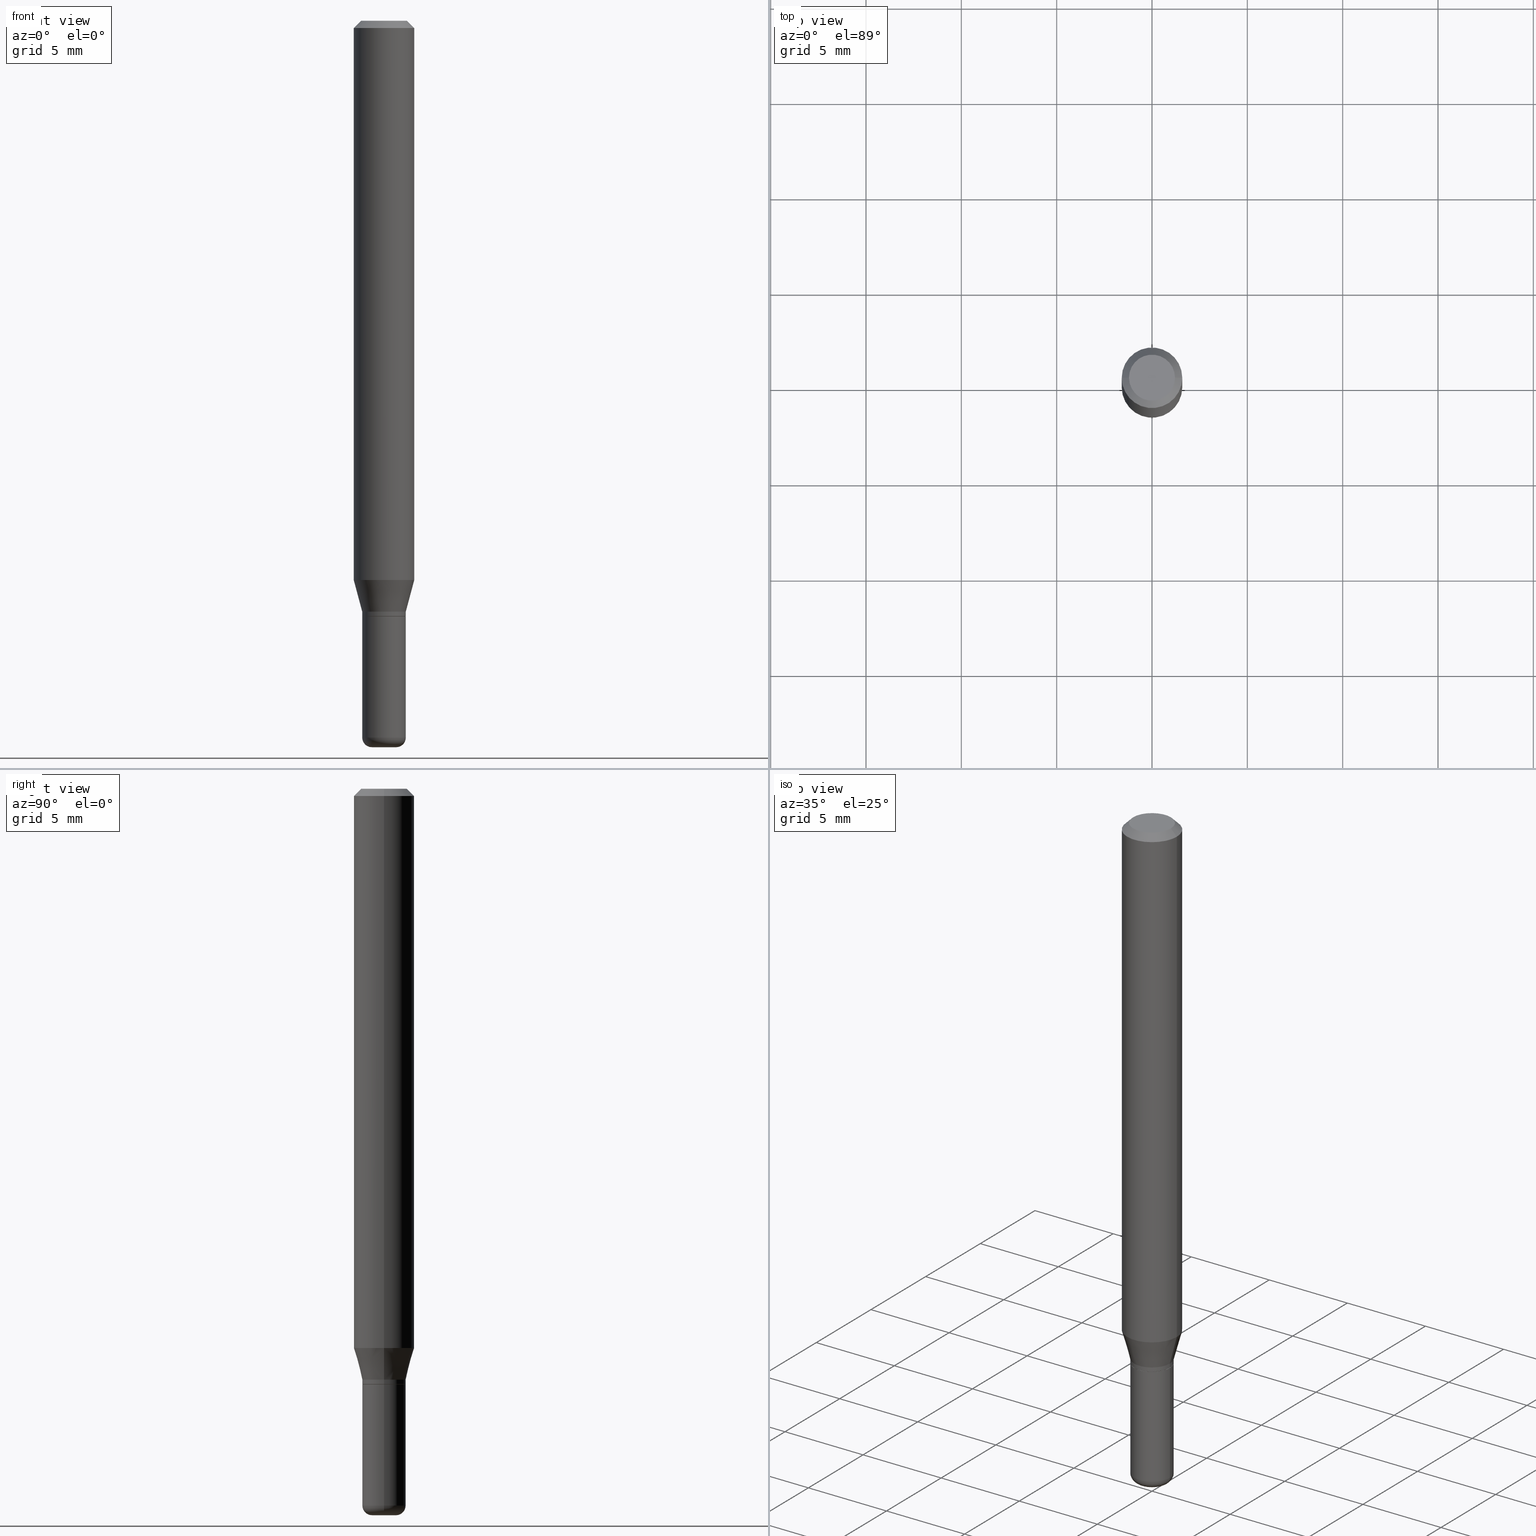
[diagram: canonical four-view strip — front | top / right | iso, engineering-drawing reading convention]
A machine part, canonical four-view strip (front | top / right | iso — engineering-drawing reading convention). The complete STEP part file that produces these views, byte-faithful:
ISO-10303-21;
HEADER;
FILE_DESCRIPTION (( 'STEP AP203' ),
    '1' );
FILE_NAME ('08582.STEP',
    '2024-02-29T19:52:15',
    ( '' ),
    ( '' ),
    'SwSTEP 2.0',
    'SolidWorks 2023',
    '' );
FILE_SCHEMA (( 'CONFIG_CONTROL_DESIGN' ));
ENDSEC;

DATA;
#1 = EDGE_CURVE ( 'NONE', #264, #388, #477, .T. ) ;
#2 = DIRECTION ( 'NONE',  ( 2.445468806185136597E-29, -3.491481338843145583E-15, -1.000000000000000000 ) ) ;
#3 = EDGE_CURVE ( 'NONE', #237, #518, #12, .T. ) ;
#4 = ORIENTED_EDGE ( 'NONE', *, *, #233, .T. ) ;
#5 = CIRCLE ( 'NONE', #69, 0.04499999999999999833 ) ;
#6 = FACE_OUTER_BOUND ( 'NONE', #273, .T. ) ;
#7 = ORIENTED_EDGE ( 'NONE', *, *, #162, .F. ) ;
#8 = VERTEX_POINT ( 'NONE', #484 ) ;
#9 = PERSON_AND_ORGANIZATION ( #109, #311 ) ;
#10 = EDGE_LOOP ( 'NONE', ( #348, #248 ) ) ;
#11 = CIRCLE ( 'NONE', #75, 0.02000000000000003511 ) ;
#12 = CIRCLE ( 'NONE', #337, 0.06250000000000000000 ) ;
#13 = AXIS2_PLACEMENT_3D ( 'NONE', #507, #106, #292 ) ;
#14 = CARTESIAN_POINT ( 'NONE',  ( -0.06250000000000000000, -1.597884641570968368E-15, -0.01499999999999970281 ) ) ;
#15 = ORIENTED_EDGE ( 'NONE', *, *, #1, .F. ) ;
#16 =( LENGTH_UNIT ( ) NAMED_UNIT ( * ) SI_UNIT ( $, .METRE. ) );
#17 = CYLINDRICAL_SURFACE ( 'NONE', #296, 0.04500000000000001221 ) ;
#18 =( NAMED_UNIT ( * ) SI_UNIT ( $, .STERADIAN. ) SOLID_ANGLE_UNIT ( ) );
#19 = EDGE_CURVE ( 'NONE', #271, #317, #172, .T. ) ;
#20 = ORIENTED_EDGE ( 'NONE', *, *, #427, .F. ) ;
#21 = LOCAL_TIME ( 14, 52, 15.00000000000000000, #458 ) ;
#22 = PERSON_AND_ORGANIZATION ( #109, #311 ) ;
#23 = DIRECTION ( 'NONE',  ( 2.438088387897960049E-29, -3.491481338843145188E-15, -1.000000000000000000 ) ) ;
#24 = DIRECTION ( 'NONE',  ( 1.000000000000000000, -6.982962677686269077E-15, 0.000000000000000000 ) ) ;
#25 = ADVANCED_FACE ( 'NONE', ( #125 ), #17, .T. ) ;
#26 = EDGE_CURVE ( 'NONE', #170, #266, #58, .T. ) ;
#27 = CALENDAR_DATE ( 2024, 29, 2 ) ;
#28 = PLANE ( 'NONE',  #423 ) ;
#29 = AXIS2_PLACEMENT_3D ( 'NONE', #406, #321, #199 ) ;
#30 = CIRCLE ( 'NONE', #277, 0.04499999999999999833 ) ;
#31 = CIRCLE ( 'NONE', #395, 0.04750000000000000749 ) ;
#32 = DIRECTION ( 'NONE',  ( -2.445468806185136877E-29, 3.491481338843145188E-15, 1.000000000000000000 ) ) ;
#33 = DATE_AND_TIME ( #27, #244 ) ;
#34 = CARTESIAN_POINT ( 'NONE',  ( 3.316907271900976589E-16, 0.04750000000000000749, -2.925296391183627249E-17 ) ) ;
#35 = EDGE_CURVE ( 'NONE', #271, #266, #421, .T. ) ;
#36 = CARTESIAN_POINT ( 'NONE',  ( 3.619293833154002365E-29, -5.167392381487854879E-15, -1.479999999999999982 ) ) ;
#37 = AXIS2_PLACEMENT_3D ( 'NONE', #73, #2, #272 ) ;
#38 = DIRECTION ( 'NONE',  ( -2.445468806185136597E-29, 3.491481338843145583E-15, 1.000000000000000000 ) ) ;
#39 = ORIENTED_EDGE ( 'NONE', *, *, #453, .T. ) ;
#40 = AXIS2_PLACEMENT_3D ( 'NONE', #379, #414, #297 ) ;
#41 = ORIENTED_EDGE ( 'NONE', *, *, #180, .T. ) ;
#42 = CC_DESIGN_PERSON_AND_ORGANIZATION_ASSIGNMENT ( #463, #64, ( #203 ) ) ;
#43 = DIRECTION ( 'NONE',  ( -2.445468806185136877E-29, 3.491481338843145188E-15, 1.000000000000000000 ) ) ;
#44 = EDGE_LOOP ( 'NONE', ( #305, #115, #118, #405 ) ) ;
#45 = CARTESIAN_POINT ( 'NONE',  ( -0.04499999999999999833, -3.939863002296592945E-15, -1.220000000000000195 ) ) ;
#46 = ORIENTED_EDGE ( 'NONE', *, *, #408, .F. ) ;
#47 = AXIS2_PLACEMENT_3D ( 'NONE', #135, #286, #452 ) ;
#48 = CONICAL_SURFACE ( 'NONE', #13, 0.04450000000000001177, 0.7853981633972775267 ) ;
#49 = EDGE_CURVE ( 'NONE', #317, #130, #513, .T. ) ;
#50 = CC_DESIGN_PERSON_AND_ORGANIZATION_ASSIGNMENT ( #9, #144, ( #198 ) ) ;
#51 = VERTEX_POINT ( 'NONE', #290 ) ;
#52 = DIRECTION ( 'NONE',  ( -2.445468806185136597E-29, 3.491481338843145583E-15, 1.000000000000000000 ) ) ;
#53 = ORIENTED_EDGE ( 'NONE', *, *, #3, .F. ) ;
#54 = DIRECTION ( 'NONE',  ( 1.000000000000000000, -6.982962677686254878E-15, 0.000000000000000000 ) ) ;
#55 = EDGE_LOOP ( 'NONE', ( #368, #94, #242, #480 ) ) ;
#56 = CC_DESIGN_SECURITY_CLASSIFICATION ( #335, ( #203 ) ) ;
#57 = DIRECTION ( 'NONE',  ( 1.000000000000000000, -6.982962677686265922E-15, 4.876176775795935793E-29 ) ) ;
#58 = LINE ( 'NONE', #365, #403 ) ;
#59 = CARTESIAN_POINT ( 'NONE',  ( 0.02499999999999999792, -5.341966448430011546E-15, -1.479999999999999982 ) ) ;
#60 = ORIENTED_EDGE ( 'NONE', *, *, #217, .T. ) ;
#61 = EDGE_LOOP ( 'NONE', ( #250, #232, #197, #74 ) ) ;
#62 = AXIS2_PLACEMENT_3D ( 'NONE', #190, #349, #114 ) ;
#63 = CIRCLE ( 'NONE', #126, 0.06250000000000000000 ) ;
#64 = PERSON_AND_ORGANIZATION_ROLE ( 'creator' ) ;
#65 = DIRECTION ( 'NONE',  ( -2.445468806185136597E-29, 3.491481338843145583E-15, 1.000000000000000000 ) ) ;
#66 = CARTESIAN_POINT ( 'NONE',  ( 0.06250000000000000000, -4.364351673553916694E-16, 3.047610484872459871E-30 ) ) ;
#67 = APPROVAL_ROLE ( '' ) ;
#68 = DIRECTION ( 'NONE',  ( 0.7071067811864267805, -2.468850131080992517E-15, 0.7071067811866682540 ) ) ;
#69 = AXIS2_PLACEMENT_3D ( 'NONE', #251, #409, #201 ) ;
#70 = DIRECTION ( 'NONE',  ( -2.438088387897960049E-29, 3.491481338843145188E-15, 1.000000000000000000 ) ) ;
#71 = EDGE_CURVE ( 'NONE', #470, #89, #30, .T. ) ;
#72 = DIRECTION ( 'NONE',  ( -2.445468806185136597E-29, 3.491481338843145583E-15, 1.000000000000000000 ) ) ;
#73 = CARTESIAN_POINT ( 'NONE',  ( 3.668203209277632395E-31, -5.237222008264614861E-17, -0.01499999999999970281 ) ) ;
#74 = ORIENTED_EDGE ( 'NONE', *, *, #481, .F. ) ;
#75 = AXIS2_PLACEMENT_3D ( 'NONE', #59, #492, #488 ) ;
#76 = DIRECTION ( 'NONE',  ( -0.2588190451025206285, 5.211531920934544731E-15, 0.9659258262890682012 ) ) ;
#77 = ORIENTED_EDGE ( 'NONE', *, *, #49, .F. ) ;
#78 = AXIS2_PLACEMENT_3D ( 'NONE', #374, #65, #373 ) ;
#79 = APPROVAL ( #291, 'UNSPECIFIED' ) ;
#80 = CARTESIAN_POINT ( 'NONE',  ( 0.06250000000000000000, -4.811533449433669144E-16, -0.01499999999999970281 ) ) ;
#81 = ORIENTED_EDGE ( 'NONE', *, *, #71, .T. ) ;
#82 = FACE_OUTER_BOUND ( 'NONE', #193, .T. ) ;
#83 = ORIENTED_EDGE ( 'NONE', *, *, #333, .F. ) ;
#84 = CARTESIAN_POINT ( 'NONE',  ( 0.04500000000000003303, -5.481625701983737354E-15, -1.479999999999999982 ) ) ;
#85 = CIRCLE ( 'NONE', #345, 0.04500000000000001221 ) ;
#86 = EDGE_LOOP ( 'NONE', ( #120, #152, #358, #282 ) ) ;
#87 = AXIS2_PLACEMENT_3D ( 'NONE', #34, #23, #185 ) ;
#88 = DIRECTION ( 'NONE',  ( -2.445468806185136597E-29, 3.491481338843145583E-15, 1.000000000000000000 ) ) ;
#89 = VERTEX_POINT ( 'NONE', #97 ) ;
#90 =( NAMED_UNIT ( * ) PLANE_ANGLE_UNIT ( ) SI_UNIT ( $, .RADIAN. ) );
#91 = ORIENTED_EDGE ( 'NONE', *, *, #19, .F. ) ;
#92 = FACE_OUTER_BOUND ( 'NONE', #86, .T. ) ;
#93 = EDGE_CURVE ( 'NONE', #89, #470, #5, .T. ) ;
#94 = ORIENTED_EDGE ( 'NONE', *, *, #238, .T. ) ;
#95 = VECTOR ( 'NONE', #478, 39.37007874015748143 ) ;
#96 = DIRECTION ( 'NONE',  ( -2.445468806185136597E-29, 3.491481338843145583E-15, 1.000000000000000000 ) ) ;
#97 = CARTESIAN_POINT ( 'NONE',  ( -0.04499999999999999833, -4.411212983040417053E-15, -1.230000000000000204 ) ) ;
#98 = PERSON_AND_ORGANIZATION_ROLE ( 'creator' ) ;
#99 = ADVANCED_FACE ( 'NONE', ( #128 ), #447, .T. ) ;
#100 = DIRECTION ( 'NONE',  ( 1.000000000000000000, -6.982962677686276177E-15, 0.000000000000000000 ) ) ;
#101 = VECTOR ( 'NONE', #194, 39.37007874015748143 ) ;
#102 = SECURITY_CLASSIFICATION_LEVEL ( 'unclassified' ) ;
#103 = CARTESIAN_POINT ( 'NONE',  ( -0.04500000000000000527, 3.197442310920451211E-16, -2.213520790614707910E-30 ) ) ;
#104 = LINE ( 'NONE', #103, #124 ) ;
#105 = PERSON_AND_ORGANIZATION ( #109, #311 ) ;
#106 = DIRECTION ( 'NONE',  ( -2.445468806185136597E-29, 3.491481338843145583E-15, 1.000000000000000000 ) ) ;
#107 = ADVANCED_FACE ( 'NONE', ( #459 ), #48, .T. ) ;
#108 = ADVANCED_FACE ( 'NONE', ( #411 ), #486, .T. ) ;
#109 = PERSON ( 'UNSPECIFIED', 'UNSPECIFIED', 'UNSPECIFIED', ('UNSPECIFIED'), ('UNSPECIFIED'), ('UNSPECIFIED') ) ;
#110 = AXIS2_PLACEMENT_3D ( 'NONE', #342, #174, #466 ) ;
#111 = CARTESIAN_POINT ( 'NONE',  ( 0.04750000000000000749, -4.035134999187568762E-16, 2.731847993664288856E-16 ) ) ;
#112 = CARTESIAN_POINT ( 'NONE',  ( 3.668203209277704895E-29, -5.237222008264718177E-15, -1.500000000000000222 ) ) ;
#113 = ORIENTED_EDGE ( 'NONE', *, *, #257, .F. ) ;
#114 = DIRECTION ( 'NONE',  ( 1.000000000000000000, -6.982962677686262766E-15, 4.883557194083111780E-29 ) ) ;
#115 = ORIENTED_EDGE ( 'NONE', *, *, #168, .T. ) ;
#116 = APPROVAL_PERSON_ORGANIZATION ( #506, #79, #67 ) ;
#117 = LINE ( 'NONE', #119, #101 ) ;
#118 = ORIENTED_EDGE ( 'NONE', *, *, #427, .T. ) ;
#119 = CARTESIAN_POINT ( 'NONE',  ( -0.06250000000000000000, 3.840629472727455270E-16, -0.01499999999999970281 ) ) ;
#120 = ORIENTED_EDGE ( 'NONE', *, *, #160, .F. ) ;
#121 = DIRECTION ( 'NONE',  ( 1.000000000000000000, -6.982962677686266711E-15, 4.876176775795935793E-29 ) ) ;
#122 = ORIENTED_EDGE ( 'NONE', *, *, #160, .T. ) ;
#123 = CARTESIAN_POINT ( 'NONE',  ( 0.000000000000000000, 0.000000000000000000, 0.000000000000000000 ) ) ;
#124 = VECTOR ( 'NONE', #148, 39.37007874015748143 ) ;
#125 = FACE_OUTER_BOUND ( 'NONE', #314, .T. ) ;
#126 = AXIS2_PLACEMENT_3D ( 'NONE', #243, #249, #164 ) ;
#127 = PLANE ( 'NONE',  #511 ) ;
#128 = FACE_OUTER_BOUND ( 'NONE', #55, .T. ) ;
#129 = DIRECTION ( 'NONE',  ( 0.000000000000000000, 0.000000000000000000, 1.000000000000000000 ) ) ;
#130 = VERTEX_POINT ( 'NONE', #177 ) ;
#131 = DIRECTION ( 'NONE',  ( -1.000000000000000000, 6.982962677686266711E-15, 0.000000000000000000 ) ) ;
#132 = DIRECTION ( 'NONE',  ( 1.000000000000000000, -6.982962677686266711E-15, 0.000000000000000000 ) ) ;
#133 = AXIS2_PLACEMENT_3D ( 'NONE', #246, #166, #360 ) ;
#134 = CIRCLE ( 'NONE', #303, 0.04499999999999999833 ) ;
#135 = CARTESIAN_POINT ( 'NONE',  ( 2.983471943545866670E-29, -4.259607233388637524E-15, -1.220000000000000195 ) ) ;
#136 = EDGE_CURVE ( 'NONE', #302, #271, #457, .T. ) ;
#137 = EDGE_CURVE ( 'NONE', #170, #302, #412, .T. ) ;
#138 = DIRECTION ( 'NONE',  ( 1.000000000000000000, -6.982962677686267499E-15, 4.876176775795935793E-29 ) ) ;
#139 = CALENDAR_DATE ( 2024, 29, 2 ) ;
#140 = DIRECTION ( 'NONE',  ( -2.445468806185136597E-29, 3.491481338843145583E-15, 1.000000000000000000 ) ) ;
#141 = AXIS2_PLACEMENT_3D ( 'NONE', #253, #256, #24 ) ;
#142 = APPROVAL_DATE_TIME ( #260, #202 ) ;
#143 = FACE_OUTER_BOUND ( 'NONE', #195, .T. ) ;
#144 = PERSON_AND_ORGANIZATION_ROLE ( 'design_owner' ) ;
#145 = CARTESIAN_POINT ( 'NONE',  ( 2.983471943545866670E-29, -4.259607233388637524E-15, -1.220000000000000195 ) ) ;
#146 = EDGE_CURVE ( 'NONE', #235, #237, #499, .T. ) ;
#147 = APPROVAL_DATE_TIME ( #33, #157 ) ;
#148 = DIRECTION ( 'NONE',  ( -2.445468806185136877E-29, 3.491481338843145188E-15, 1.000000000000000000 ) ) ;
#149 = VECTOR ( 'NONE', #308, 39.37007874015748854 ) ;
#150 = DIRECTION ( 'NONE',  ( 1.000000000000000000, -6.982962677686262766E-15, 4.883557194083111780E-29 ) ) ;
#151 = CARTESIAN_POINT ( 'NONE',  ( 3.007926631607718216E-29, -4.294522046777069173E-15, -1.230000000000000204 ) ) ;
#152 = ORIENTED_EDGE ( 'NONE', *, *, #481, .T. ) ;
#153 = DIRECTION ( 'NONE',  ( -2.445468806185136597E-29, 3.491481338843145583E-15, 1.000000000000000000 ) ) ;
#154 = ORIENTED_EDGE ( 'NONE', *, *, #378, .T. ) ;
#155 = DIRECTION ( 'NONE',  ( -2.445468806185136597E-29, 3.491481338843145583E-15, 1.000000000000000000 ) ) ;
#156 = VECTOR ( 'NONE', #432, 39.37007874015748143 ) ;
#157 = APPROVAL ( #212, 'UNSPECIFIED' ) ;
#158 = EDGE_LOOP ( 'NONE', ( #81, #310 ) ) ;
#159 = CARTESIAN_POINT ( 'NONE',  ( 0.04499999999999999833, -4.573840553884519999E-15, -1.220000000000000195 ) ) ;
#160 = EDGE_CURVE ( 'NONE', #266, #130, #104, .T. ) ;
#161 = ORIENTED_EDGE ( 'NONE', *, *, #136, .F. ) ;
#162 = EDGE_CURVE ( 'NONE', #401, #324, #167, .T. ) ;
#163 = ORIENTED_EDGE ( 'NONE', *, *, #288, .T. ) ;
#164 = DIRECTION ( 'NONE',  ( 1.000000000000000000, -6.982962677686262766E-15, 0.000000000000000000 ) ) ;
#165 = LOCAL_TIME ( 14, 52, 15.00000000000000000, #372 ) ;
#166 = DIRECTION ( 'NONE',  ( -2.445468806185136597E-29, 3.491481338843145583E-15, 1.000000000000000000 ) ) ;
#167 = CIRCLE ( 'NONE', #254, 0.04500000000000003303 ) ;
#168 = EDGE_CURVE ( 'NONE', #130, #317, #134, .T. ) ;
#169 = DIRECTION ( 'NONE',  ( -2.438088387897960049E-29, 3.491481338843145188E-15, 1.000000000000000000 ) ) ;
#170 = VERTEX_POINT ( 'NONE', #501 ) ;
#171 = CARTESIAN_POINT ( 'NONE',  ( 3.668203209277632395E-31, -5.237222008264614861E-17, -0.01499999999999970281 ) ) ;
#172 = LINE ( 'NONE', #496, #245 ) ;
#173 = COORDINATED_UNIVERSAL_TIME_OFFSET ( 5, 0, .BEHIND. ) ;
#174 = DIRECTION ( 'NONE',  ( 7.105427357601001859E-15, 1.000000000000000000, -3.491481338843145583E-15 ) ) ;
#175 = DIRECTION ( 'NONE',  ( -2.445468806185136877E-29, 3.491481338843145188E-15, 1.000000000000000000 ) ) ;
#176 = COORDINATED_UNIVERSAL_TIME_OFFSET ( 5, 0, .BEHIND. ) ;
#177 = CARTESIAN_POINT ( 'NONE',  ( -0.04499999999999999833, -3.763674637602973398E-15, -1.220000000000000195 ) ) ;
#178 = APPLICATION_CONTEXT ( 'configuration controlled 3d designs of mechanical parts and assemblies' ) ;
#179 = LOCAL_TIME ( 14, 52, 15.00000000000000000, #255 ) ;
#180 = EDGE_CURVE ( 'NONE', #518, #237, #361, .T. ) ;
#181 = APPLICATION_PROTOCOL_DEFINITION ( 'international standard', 'config_control_design', 1994, #178 ) ;
#182 = PRODUCT_DEFINITION ( 'UNKNOWN', '', #203, #208 ) ;
#183 = DIRECTION ( 'NONE',  ( 1.000000000000000000, -6.982962677686263555E-15, 0.000000000000000000 ) ) ;
#184 = PERSON_AND_ORGANIZATION_ROLE ( 'design_supplier' ) ;
#185 = DIRECTION ( 'NONE',  ( -1.000000000000000000, 6.982962677686265922E-15, -4.876176775795935793E-29 ) ) ;
#186 = CARTESIAN_POINT ( 'NONE',  ( -0.04500000000000001221, 3.197442310920451704E-16, -2.213520790614708260E-30 ) ) ;
#187 = ORIENTED_EDGE ( 'NONE', *, *, #137, .F. ) ;
#188 = VECTOR ( 'NONE', #43, 39.37007874015748143 ) ;
#189 = VECTOR ( 'NONE', #32, 39.37007874015748143 ) ;
#190 = CARTESIAN_POINT ( 'NONE',  ( 3.619293833154002365E-29, -5.167392381487854879E-15, -1.479999999999999982 ) ) ;
#191 = EDGE_LOOP ( 'NONE', ( #226, #206 ) ) ;
#192 = CARTESIAN_POINT ( 'NONE',  ( 0.04500000000000001221, -4.607009626603530145E-15, -1.229500000000000037 ) ) ;
#193 = EDGE_LOOP ( 'NONE', ( #516, #472, #439, #41 ) ) ;
#194 = DIRECTION ( 'NONE',  ( -0.7071067811865479058, 2.468850131082261005E-15, -0.7071067811865471286 ) ) ;
#195 = EDGE_LOOP ( 'NONE', ( #46, #187 ) ) ;
#196 = DIRECTION ( 'NONE',  ( -2.445468806185136597E-29, 3.491481338843145583E-15, 1.000000000000000000 ) ) ;
#197 = ORIENTED_EDGE ( 'NONE', *, *, #136, .T. ) ;
#198 = PRODUCT ( '08582', '08582', '', ( #357 ) ) ;
#199 = DIRECTION ( 'NONE',  ( -1.000000000000000000, 6.982962677686265922E-15, -4.876176775795935793E-29 ) ) ;
#200 = ORIENTED_EDGE ( 'NONE', *, *, #26, .T. ) ;
#201 = DIRECTION ( 'NONE',  ( 1.000000000000000000, -6.982962677686269077E-15, 0.000000000000000000 ) ) ;
#202 = APPROVAL ( #504, 'UNSPECIFIED' ) ;
#203 = PRODUCT_DEFINITION_FORMATION_WITH_SPECIFIED_SOURCE ( 'ANY', '', #198, .NOT_KNOWN. ) ;
#204 = DIRECTION ( 'NONE',  ( 1.000000000000000000, -6.982962677686267499E-15, 4.876176775795935793E-29 ) ) ;
#205 = CARTESIAN_POINT ( 'NONE',  ( 0.04499999999999999833, -4.608755367272951648E-15, -1.230000000000000204 ) ) ;
#206 = ORIENTED_EDGE ( 'NONE', *, *, #436, .F. ) ;
#207 = ORIENTED_EDGE ( 'NONE', *, *, #146, .F. ) ;
#208 = DESIGN_CONTEXT ( 'detailed design', #178, 'design' ) ;
#209 = AXIS2_PLACEMENT_3D ( 'NONE', #304, #196, #270 ) ;
#210 = ORIENTED_EDGE ( 'NONE', *, *, #3, .T. ) ;
#211 = AXIS2_PLACEMENT_3D ( 'NONE', #112, #52, #54 ) ;
#212 = APPROVAL_STATUS ( 'not_yet_approved' ) ;
#213 = CARTESIAN_POINT ( 'NONE',  ( 3.007926631607718216E-29, -4.294522046777069173E-15, -1.230000000000000204 ) ) ;
#214 = ADVANCED_FACE ( 'NONE', ( #143 ), #28, .F. ) ;
#215 = PERSON_AND_ORGANIZATION_ROLE ( 'classification_officer' ) ;
#216 = FACE_OUTER_BOUND ( 'NONE', #397, .T. ) ;
#217 = EDGE_CURVE ( 'NONE', #8, #518, #371, .T. ) ;
#218 = CARTESIAN_POINT ( 'NONE',  ( 3.007926631607718216E-29, -4.294522046777069173E-15, -1.230000000000000204 ) ) ;
#219 =( GEOMETRIC_REPRESENTATION_CONTEXT ( 3 ) GLOBAL_UNCERTAINTY_ASSIGNED_CONTEXT ( ( #456 ) ) GLOBAL_UNIT_ASSIGNED_CONTEXT ( ( #445, #90, #18 ) ) REPRESENTATION_CONTEXT ( 'NONE', 'WORKASPACE' ) );
#220 = TOROIDAL_SURFACE ( 'NONE', #467, 0.02499999999999999792, 0.02000000000000003164 ) ;
#221 = DATE_AND_TIME ( #377, #179 ) ;
#222 = CARTESIAN_POINT ( 'NONE',  ( -0.06250000000000000000, 4.440892098500626162E-16, -3.074334431409316114E-30 ) ) ;
#223 = DIRECTION ( 'NONE',  ( 1.000000000000000000, -6.982962677686269077E-15, 0.000000000000000000 ) ) ;
#224 = ADVANCED_FACE ( 'NONE', ( #216 ), #228, .T. ) ;
#225 = DIRECTION ( 'NONE',  ( -2.445468806185136597E-29, 3.491481338843145583E-15, 1.000000000000000000 ) ) ;
#226 = ORIENTED_EDGE ( 'NONE', *, *, #233, .F. ) ;
#227 = AXIS2_PLACEMENT_3D ( 'NONE', #490, #398, #451 ) ;
#228 = CONICAL_SURFACE ( 'NONE', #141, 0.04499999999999999833, 0.2617993877991493523 ) ;
#229 = DIRECTION ( 'NONE',  ( 1.000000000000000000, -6.982962677686266711E-15, 4.876176775795935793E-29 ) ) ;
#230 = ORIENTED_EDGE ( 'NONE', *, *, #35, .F. ) ;
#231 = CYLINDRICAL_SURFACE ( 'NONE', #209, 0.04500000000000000527 ) ;
#232 = ORIENTED_EDGE ( 'NONE', *, *, #137, .T. ) ;
#233 = EDGE_CURVE ( 'NONE', #435, #51, #262, .T. ) ;
#234 = CARTESIAN_POINT ( 'NONE',  ( -6.680649051745406845E-45, 9.538196290434862081E-31, 2.731847993664263218E-16 ) ) ;
#235 = VERTEX_POINT ( 'NONE', #336 ) ;
#236 = LOCAL_TIME ( 14, 52, 15.00000000000000000, #173 ) ;
#237 = VERTEX_POINT ( 'NONE', #334 ) ;
#238 = EDGE_CURVE ( 'NONE', #324, #401, #510, .T. ) ;
#239 = FACE_OUTER_BOUND ( 'NONE', #158, .T. ) ;
#240 = ADVANCED_FACE ( 'NONE', ( #464 ), #462, .F. ) ;
#241 = DIRECTION ( 'NONE',  ( -2.445468806185136597E-29, 3.491481338843145583E-15, 1.000000000000000000 ) ) ;
#242 = ORIENTED_EDGE ( 'NONE', *, *, #294, .T. ) ;
#243 = CARTESIAN_POINT ( 'NONE',  ( 2.823756201468231071E-29, -4.031575482759416467E-15, -1.154689110867544777 ) ) ;
#244 = LOCAL_TIME ( 14, 52, 15.00000000000000000, #176 ) ;
#245 = VECTOR ( 'NONE', #444, 39.37007874015748143 ) ;
#246 = CARTESIAN_POINT ( 'NONE',  ( -6.680649051745406845E-45, 9.538196290434862081E-31, 2.731847993664263218E-16 ) ) ;
#247 = CC_DESIGN_DATE_AND_TIME_ASSIGNMENT ( #221, #418, ( #335 ) ) ;
#248 = ORIENTED_EDGE ( 'NONE', *, *, #1, .T. ) ;
#249 = DIRECTION ( 'NONE',  ( -2.445468806185136597E-29, 3.491481338843145583E-15, 1.000000000000000000 ) ) ;
#250 = ORIENTED_EDGE ( 'NONE', *, *, #26, .F. ) ;
#251 = CARTESIAN_POINT ( 'NONE',  ( 3.007926631607718216E-29, -4.294522046777069173E-15, -1.230000000000000204 ) ) ;
#252 = PERSON_AND_ORGANIZATION ( #109, #311 ) ;
#253 = CARTESIAN_POINT ( 'NONE',  ( 2.983471943545866670E-29, -4.259607233388637524E-15, -1.220000000000000195 ) ) ;
#254 = AXIS2_PLACEMENT_3D ( 'NONE', #301, #295, #183 ) ;
#255 = COORDINATED_UNIVERSAL_TIME_OFFSET ( 5, 0, .BEHIND. ) ;
#256 = DIRECTION ( 'NONE',  ( -2.445468806185136597E-29, 3.491481338843145583E-15, 1.000000000000000000 ) ) ;
#257 = EDGE_CURVE ( 'NONE', #51, #324, #440, .T. ) ;
#258 = MANIFOLD_SOLID_BREP ( 'Body-Move/Copy2[2]', #441 ) ;
#259 = CARTESIAN_POINT ( 'NONE',  ( 0.04450000000000001177, -4.605263885934108641E-15, -1.230000000000000204 ) ) ;
#260 = DATE_AND_TIME ( #139, #165 ) ;
#261 = DIRECTION ( 'NONE',  ( -2.445468806185136597E-29, 3.491481338843145583E-15, 1.000000000000000000 ) ) ;
#262 = CIRCLE ( 'NONE', #494, 0.02500000000000000139 ) ;
#263 = CARTESIAN_POINT ( 'NONE',  ( 3.668203209277704895E-29, -5.237222008264718177E-15, -1.500000000000000222 ) ) ;
#264 = VERTEX_POINT ( 'NONE', #111 ) ;
#265 = CARTESIAN_POINT ( 'NONE',  ( 2.823756201468231071E-29, -4.031575482759416467E-15, -1.154689110867544777 ) ) ;
#266 = VERTEX_POINT ( 'NONE', #332 ) ;
#267 = DIRECTION ( 'NONE',  ( 1.000000000000000000, -6.982962677686276177E-15, 0.000000000000000000 ) ) ;
#268 = ORIENTED_EDGE ( 'NONE', *, *, #436, .T. ) ;
#269 = CC_DESIGN_PERSON_AND_ORGANIZATION_ASSIGNMENT ( #415, #215, ( #335 ) ) ;
#270 = DIRECTION ( 'NONE',  ( 1.000000000000000000, -6.982962677686267499E-15, 4.876176775795935793E-29 ) ) ;
#271 = VERTEX_POINT ( 'NONE', #192 ) ;
#272 = DIRECTION ( 'NONE',  ( -1.000000000000000000, 6.982962677686266711E-15, 0.000000000000000000 ) ) ;
#273 = EDGE_LOOP ( 'NONE', ( #384, #122, #77, #91 ) ) ;
#274 = ADVANCED_BREP_SHAPE_REPRESENTATION ( '08582', ( #425, #258, #465 ), #219 ) ;
#275 = AXIS2_PLACEMENT_3D ( 'NONE', #339, #420, #299 ) ;
#276 = EDGE_CURVE ( 'NONE', #388, #518, #117, .T. ) ;
#277 = AXIS2_PLACEMENT_3D ( 'NONE', #455, #96, #399 ) ;
#278 = DIRECTION ( 'NONE',  ( 2.445468806185136597E-29, -3.491481338843145583E-15, -1.000000000000000000 ) ) ;
#279 = DIRECTION ( 'NONE',  ( -0.7071067811864267805, 7.493145998869918709E-15, 0.7071067811866682540 ) ) ;
#280 = CARTESIAN_POINT ( 'NONE',  ( 3.006703897204625414E-29, -4.292776306107646881E-15, -1.229500000000000037 ) ) ;
#281 = DIRECTION ( 'NONE',  ( 1.000000000000000000, 0.000000000000000000, 0.000000000000000000 ) ) ;
#282 = ORIENTED_EDGE ( 'NONE', *, *, #168, .F. ) ;
#283 = FACE_OUTER_BOUND ( 'NONE', #367, .T. ) ;
#284 = CONICAL_SURFACE ( 'NONE', #227, 0.04450000000000001177, 0.7853981633972775267 ) ;
#285 = ADVANCED_FACE ( 'NONE', ( #6 ), #231, .T. ) ;
#286 = DIRECTION ( 'NONE',  ( -2.445468806185136597E-29, 3.491481338843145583E-15, 1.000000000000000000 ) ) ;
#287 = VECTOR ( 'NONE', #68, 39.37007874015748143 ) ;
#288 = EDGE_CURVE ( 'NONE', #264, #237, #438, .T. ) ;
#289 = CYLINDRICAL_SURFACE ( 'NONE', #346, 0.04500000000000000527 ) ;
#290 = CARTESIAN_POINT ( 'NONE',  ( -0.02500000000000000139, -4.953617237360251242E-15, -1.500000000000000222 ) ) ;
#291 = APPROVAL_STATUS ( 'not_yet_approved' ) ;
#292 = DIRECTION ( 'NONE',  ( 1.000000000000000000, -6.982962677686276177E-15, 0.000000000000000000 ) ) ;
#293 = APPROVAL_ROLE ( '' ) ;
#294 = EDGE_CURVE ( 'NONE', #401, #470, #313, .T. ) ;
#295 = DIRECTION ( 'NONE',  ( -2.445468806185136597E-29, 3.491481338843145583E-15, 1.000000000000000000 ) ) ;
#296 = AXIS2_PLACEMENT_3D ( 'NONE', #493, #329, #204 ) ;
#297 = DIRECTION ( 'NONE',  ( 1.000000000000000000, -6.982962677686263555E-15, 0.000000000000000000 ) ) ;
#298 = DATE_AND_TIME ( #410, #236 ) ;
#299 = DIRECTION ( 'NONE',  ( 1.000000000000000000, -6.982962677686266711E-15, 0.000000000000000000 ) ) ;
#300 = SHAPE_DEFINITION_REPRESENTATION ( #498, #274 ) ;
#301 = CARTESIAN_POINT ( 'NONE',  ( 3.619293833154002365E-29, -5.167392381487854879E-15, -1.479999999999999982 ) ) ;
#302 = VERTEX_POINT ( 'NONE', #347 ) ;
#303 = AXIS2_PLACEMENT_3D ( 'NONE', #145, #72, #223 ) ;
#304 = CARTESIAN_POINT ( 'NONE',  ( 0.000000000000000000, 0.000000000000000000, 0.000000000000000000 ) ) ;
#305 = ORIENTED_EDGE ( 'NONE', *, *, #378, .F. ) ;
#306 = FACE_OUTER_BOUND ( 'NONE', #430, .T. ) ;
#307 = ORIENTED_EDGE ( 'NONE', *, *, #408, .T. ) ;
#308 = DIRECTION ( 'NONE',  ( 0.2588190451025206285, 1.565188264969627095E-15, 0.9659258262890682012 ) ) ;
#309 = ADVANCED_FACE ( 'NONE', ( #351 ), #330, .T. ) ;
#310 = ORIENTED_EDGE ( 'NONE', *, *, #93, .T. ) ;
#311 = ORGANIZATION ( 'UNSPECIFIED', 'UNSPECIFIED', '' ) ;
#312 = AXIS2_PLACEMENT_3D ( 'NONE', #482, #38, #121 ) ;
#313 = LINE ( 'NONE', #389, #188 ) ;
#314 = EDGE_LOOP ( 'NONE', ( #491, #422, #483, #392 ) ) ;
#315 = CYLINDRICAL_SURFACE ( 'NONE', #485, 0.06250000000000000000 ) ;
#316 = DIMENSIONAL_EXPONENTS ( 1.000000000000000000, 0.000000000000000000, 0.000000000000000000, 0.000000000000000000, 0.000000000000000000, 0.000000000000000000, 0.000000000000000000 ) ;
#317 = VERTEX_POINT ( 'NONE', #159 ) ;
#318 = EDGE_CURVE ( 'NONE', #324, #89, #355, .T. ) ;
#319 = DIRECTION ( 'NONE',  ( 1.000000000000000000, -6.982962677686266711E-15, 0.000000000000000000 ) ) ;
#320 = CONICAL_SURFACE ( 'NONE', #402, 0.06250000000000000000, 0.7853981633974488341 ) ;
#321 = DIRECTION ( 'NONE',  ( 2.438088387897960049E-29, -3.491481338843145188E-15, -1.000000000000000000 ) ) ;
#322 = AXIS2_PLACEMENT_3D ( 'NONE', #265, #225, #434 ) ;
#323 = ORIENTED_EDGE ( 'NONE', *, *, #49, .T. ) ;
#324 = VERTEX_POINT ( 'NONE', #471 ) ;
#325 = DIRECTION ( 'NONE',  ( -2.445468806185136597E-29, 3.491481338843145583E-15, 1.000000000000000000 ) ) ;
#326 = DIRECTION ( 'NONE',  ( -2.445468806185136597E-29, 3.491481338843145583E-15, 1.000000000000000000 ) ) ;
#327 = CARTESIAN_POINT ( 'NONE',  ( 3.582686580359766038E-29, -5.359686688179453325E-15, -1.500000000000000222 ) ) ;
#328 = CC_DESIGN_APPROVAL ( #202, ( #182 ) ) ;
#329 = DIRECTION ( 'NONE',  ( -2.445468806185136597E-29, 3.491481338843145583E-15, 1.000000000000000000 ) ) ;
#330 = TOROIDAL_SURFACE ( 'NONE', #62, 0.02499999999999999792, 0.02000000000000003164 ) ;
#331 = PRODUCT_RELATED_PRODUCT_CATEGORY ( 'detail', '', ( #198 ) ) ;
#332 = CARTESIAN_POINT ( 'NONE',  ( -0.04500000000000001221, -3.973032075015602302E-15, -1.229500000000000037 ) ) ;
#333 = EDGE_CURVE ( 'NONE', #235, #8, #344, .T. ) ;
#334 = CARTESIAN_POINT ( 'NONE',  ( 0.06250000000000000000, -4.888073874380378612E-16, -0.01499999999999970281 ) ) ;
#335 = SECURITY_CLASSIFICATION ( '', '', #102 ) ;
#336 = CARTESIAN_POINT ( 'NONE',  ( 0.06250000000000000000, -4.468010650114807348E-15, -1.154689110867544777 ) ) ;
#337 = AXIS2_PLACEMENT_3D ( 'NONE', #171, #326, #319 ) ;
#338 = DATE_AND_TIME ( #461, #21 ) ;
#339 = CARTESIAN_POINT ( 'NONE',  ( 3.668203209277632395E-31, -5.237222008264614861E-17, -0.01499999999999970281 ) ) ;
#340 = APPROVAL_DATE_TIME ( #338, #79 ) ;
#341 = ADVANCED_FACE ( 'NONE', ( #82 ), #514, .T. ) ;
#342 = CARTESIAN_POINT ( 'NONE',  ( -0.02499999999999999792, -4.989756697547830463E-15, -1.479999999999999982 ) ) ;
#343 = DIRECTION ( 'NONE',  ( -2.445468806185136597E-29, 3.491481338843145583E-15, 1.000000000000000000 ) ) ;
#344 = CIRCLE ( 'NONE', #322, 0.06250000000000000000 ) ;
#345 = AXIS2_PLACEMENT_3D ( 'NONE', #448, #88, #443 ) ;
#346 = AXIS2_PLACEMENT_3D ( 'NONE', #123, #325, #400 ) ;
#347 = CARTESIAN_POINT ( 'NONE',  ( 0.04450000000000001177, -4.605263885934108641E-15, -1.230000000000000204 ) ) ;
#348 = ORIENTED_EDGE ( 'NONE', *, *, #376, .T. ) ;
#349 = DIRECTION ( 'NONE',  ( -2.445468806185136597E-29, 3.491481338843145583E-15, 1.000000000000000000 ) ) ;
#350 = ORIENTED_EDGE ( 'NONE', *, *, #180, .F. ) ;
#351 = FACE_OUTER_BOUND ( 'NONE', #356, .T. ) ;
#352 = ORIENTED_EDGE ( 'NONE', *, *, #333, .T. ) ;
#353 = CC_DESIGN_APPROVAL ( #157, ( #335 ) ) ;
#354 = AXIS2_PLACEMENT_3D ( 'NONE', #424, #140, #138 ) ;
#355 = LINE ( 'NONE', #186, #156 ) ;
#356 = EDGE_LOOP ( 'NONE', ( #4, #433, #7, #428 ) ) ;
#357 = MECHANICAL_CONTEXT ( 'NONE', #380, 'mechanical' ) ;
#358 = ORIENTED_EDGE ( 'NONE', *, *, #19, .T. ) ;
#359 = APPLICATION_PROTOCOL_DEFINITION ( 'international standard', 'config_control_design', 1994, #380 ) ;
#360 = DIRECTION ( 'NONE',  ( 1.000000000000000000, -6.982962677686266711E-15, 4.852736867747365086E-29 ) ) ;
#361 = CIRCLE ( 'NONE', #275, 0.06250000000000000000 ) ;
#362 = EDGE_LOOP ( 'NONE', ( #15, #163, #210, #407 ) ) ;
#363 = CC_DESIGN_PERSON_AND_ORGANIZATION_ASSIGNMENT ( #105, #184, ( #203 ) ) ;
#364 = PLANE ( 'NONE',  #29 ) ;
#365 = CARTESIAN_POINT ( 'NONE',  ( -0.04450000000000001177, -3.978330529363824704E-15, -1.230000000000000204 ) ) ;
#366 = FACE_OUTER_BOUND ( 'NONE', #191, .T. ) ;
#367 = EDGE_LOOP ( 'NONE', ( #307, #200, #230, #161 ) ) ;
#368 = ORIENTED_EDGE ( 'NONE', *, *, #318, .F. ) ;
#369 = VECTOR ( 'NONE', #76, 39.37007874015748854 ) ;
#370 = APPROVAL_ROLE ( '' ) ;
#371 = LINE ( 'NONE', #222, #460 ) ;
#372 = COORDINATED_UNIVERSAL_TIME_OFFSET ( 5, 0, .BEHIND. ) ;
#373 = DIRECTION ( 'NONE',  ( 1.000000000000000000, -6.982962677686269077E-15, 0.000000000000000000 ) ) ;
#374 = CARTESIAN_POINT ( 'NONE',  ( 2.983471943545866670E-29, -4.259607233388637524E-15, -1.220000000000000195 ) ) ;
#375 = AXIS2_PLACEMENT_3D ( 'NONE', #151, #387, #267 ) ;
#376 = EDGE_CURVE ( 'NONE', #388, #264, #31, .T. ) ;
#377 = CALENDAR_DATE ( 2024, 29, 2 ) ;
#378 = EDGE_CURVE ( 'NONE', #130, #8, #391, .T. ) ;
#379 = CARTESIAN_POINT ( 'NONE',  ( 3.619293833154002365E-29, -5.167392381487854879E-15, -1.479999999999999982 ) ) ;
#380 = APPLICATION_CONTEXT ( 'configuration controlled 3d designs of mechanical parts and assemblies' ) ;
#381 = EDGE_LOOP ( 'NONE', ( #352, #60, #53, #207 ) ) ;
#382 = LINE ( 'NONE', #469, #149 ) ;
#383 = DIRECTION ( 'NONE',  ( 1.000000000000000000, -6.982962677686266711E-15, 4.852736867747365086E-29 ) ) ;
#384 = ORIENTED_EDGE ( 'NONE', *, *, #35, .T. ) ;
#385 = ADVANCED_FACE ( 'NONE', ( #306 ), #315, .T. ) ;
#386 = AXIS2_PLACEMENT_3D ( 'NONE', #218, #261, #100 ) ;
#387 = DIRECTION ( 'NONE',  ( -2.445468806185136597E-29, 3.491481338843145583E-15, 1.000000000000000000 ) ) ;
#388 = VERTEX_POINT ( 'NONE', #515 ) ;
#389 = CARTESIAN_POINT ( 'NONE',  ( 0.04500000000000001221, -3.142333204958821302E-16, 2.194279549108171667E-30 ) ) ;
#390 = ORIENTED_EDGE ( 'NONE', *, *, #146, .T. ) ;
#391 = LINE ( 'NONE', #45, #369 ) ;
#392 = ORIENTED_EDGE ( 'NONE', *, *, #294, .F. ) ;
#393 = CC_DESIGN_APPROVAL ( #79, ( #203 ) ) ;
#394 = ADVANCED_FACE ( 'NONE', ( #517 ), #426, .T. ) ;
#395 = AXIS2_PLACEMENT_3D ( 'NONE', #234, #155, #383 ) ;
#396 = CARTESIAN_POINT ( 'NONE',  ( 0.000000000000000000, 0.000000000000000000, 0.000000000000000000 ) ) ;
#397 = EDGE_LOOP ( 'NONE', ( #323, #154, #83, #20 ) ) ;
#398 = DIRECTION ( 'NONE',  ( -2.445468806185136597E-29, 3.491481338843145583E-15, 1.000000000000000000 ) ) ;
#399 = DIRECTION ( 'NONE',  ( 1.000000000000000000, -6.982962677686269077E-15, 0.000000000000000000 ) ) ;
#400 = DIRECTION ( 'NONE',  ( 1.000000000000000000, -6.982962677686267499E-15, 4.876176775795935793E-29 ) ) ;
#401 = VERTEX_POINT ( 'NONE', #84 ) ;
#402 = AXIS2_PLACEMENT_3D ( 'NONE', #454, #278, #131 ) ;
#403 = VECTOR ( 'NONE', #279, 39.37007874015748143 ) ;
#404 = FACE_OUTER_BOUND ( 'NONE', #362, .T. ) ;
#405 = ORIENTED_EDGE ( 'NONE', *, *, #453, .F. ) ;
#406 = CARTESIAN_POINT ( 'NONE',  ( 3.142333204959120083E-16, 0.04499999999999570316, -1.230000000000000204 ) ) ;
#407 = ORIENTED_EDGE ( 'NONE', *, *, #276, .F. ) ;
#408 = EDGE_CURVE ( 'NONE', #302, #170, #450, .T. ) ;
#409 = DIRECTION ( 'NONE',  ( -2.445468806185136597E-29, 3.491481338843145583E-15, 1.000000000000000000 ) ) ;
#410 = CALENDAR_DATE ( 2024, 29, 2 ) ;
#411 = FACE_OUTER_BOUND ( 'NONE', #44, .T. ) ;
#412 = CIRCLE ( 'NONE', #386, 0.04450000000000001177 ) ;
#413 = PERSON_AND_ORGANIZATION ( #109, #311 ) ;
#414 = DIRECTION ( 'NONE',  ( -2.445468806185136597E-29, 3.491481338843145583E-15, 1.000000000000000000 ) ) ;
#415 = PERSON_AND_ORGANIZATION ( #109, #311 ) ;
#416 = DIRECTION ( 'NONE',  ( 1.000000000000000000, -6.982962677686265922E-15, 4.876176775795935793E-29 ) ) ;
#417 = ADVANCED_FACE ( 'NONE', ( #512 ), #220, .T. ) ;
#418 = DATE_TIME_ROLE ( 'classification_date' ) ;
#419 = APPROVAL_PERSON_ORGANIZATION ( #252, #202, #293 ) ;
#420 = DIRECTION ( 'NONE',  ( -2.445468806185136597E-29, 3.491481338843145583E-15, 1.000000000000000000 ) ) ;
#421 = CIRCLE ( 'NONE', #476, 0.04500000000000001221 ) ;
#422 = ORIENTED_EDGE ( 'NONE', *, *, #318, .T. ) ;
#423 = AXIS2_PLACEMENT_3D ( 'NONE', #213, #70, #416 ) ;
#424 = CARTESIAN_POINT ( 'NONE',  ( 0.000000000000000000, 0.000000000000000000, 0.000000000000000000 ) ) ;
#425 = MANIFOLD_SOLID_BREP ( 'Body-Move/Copy2[1]', #431 ) ;
#426 = CYLINDRICAL_SURFACE ( 'NONE', #312, 0.06250000000000000000 ) ;
#427 = EDGE_CURVE ( 'NONE', #317, #235, #382, .T. ) ;
#428 = ORIENTED_EDGE ( 'NONE', *, *, #487, .F. ) ;
#429 = CARTESIAN_POINT ( 'NONE',  ( 0.000000000000000000, 0.000000000000000000, 0.000000000000000000 ) ) ;
#430 = EDGE_LOOP ( 'NONE', ( #489, #39, #390, #350 ) ) ;
#431 = CLOSED_SHELL ( 'NONE', ( #309, #25, #502, #99, #417, #479 ) ) ;
#432 = DIRECTION ( 'NONE',  ( -2.445468806185136877E-29, 3.491481338843145188E-15, 1.000000000000000000 ) ) ;
#433 = ORIENTED_EDGE ( 'NONE', *, *, #257, .T. ) ;
#434 = DIRECTION ( 'NONE',  ( 1.000000000000000000, -6.982962677686262766E-15, 0.000000000000000000 ) ) ;
#435 = VERTEX_POINT ( 'NONE', #473 ) ;
#436 = EDGE_CURVE ( 'NONE', #51, #435, #442, .T. ) ;
#437 = ADVANCED_FACE ( 'NONE', ( #92 ), #289, .T. ) ;
#438 = LINE ( 'NONE', #80, #95 ) ;
#439 = ORIENTED_EDGE ( 'NONE', *, *, #276, .T. ) ;
#440 = CIRCLE ( 'NONE', #110, 0.02000000000000003511 ) ;
#441 = CLOSED_SHELL ( 'NONE', ( #285, #509, #497, #394, #224, #108, #385, #341, #240, #214, #107, #437 ) ) ;
#442 = CIRCLE ( 'NONE', #211, 0.02500000000000000139 ) ;
#443 = DIRECTION ( 'NONE',  ( 1.000000000000000000, -6.982962677686266711E-15, 0.000000000000000000 ) ) ;
#444 = DIRECTION ( 'NONE',  ( -2.445468806185136877E-29, 3.491481338843145188E-15, 1.000000000000000000 ) ) ;
#445 =( CONVERSION_BASED_UNIT ( 'INCH', #495 ) LENGTH_UNIT ( ) NAMED_UNIT ( #316 ) );
#446 = CC_DESIGN_DATE_AND_TIME_ASSIGNMENT ( #298, #500, ( #182 ) ) ;
#447 = CYLINDRICAL_SURFACE ( 'NONE', #354, 0.04500000000000001221 ) ;
#448 = CARTESIAN_POINT ( 'NONE',  ( 3.006703897204625414E-29, -4.292776306107646881E-15, -1.229500000000000037 ) ) ;
#449 = ORIENTED_EDGE ( 'NONE', *, *, #487, .T. ) ;
#450 = CIRCLE ( 'NONE', #375, 0.04450000000000001177 ) ;
#451 = DIRECTION ( 'NONE',  ( 1.000000000000000000, -6.982962677686276177E-15, 0.000000000000000000 ) ) ;
#452 = DIRECTION ( 'NONE',  ( 1.000000000000000000, -6.982962677686269077E-15, 0.000000000000000000 ) ) ;
#453 = EDGE_CURVE ( 'NONE', #8, #235, #63, .T. ) ;
#454 = CARTESIAN_POINT ( 'NONE',  ( 3.668203209277632395E-31, -5.237222008264614861E-17, -0.01499999999999970281 ) ) ;
#455 = CARTESIAN_POINT ( 'NONE',  ( 3.007926631607718216E-29, -4.294522046777069173E-15, -1.230000000000000204 ) ) ;
#456 = UNCERTAINTY_MEASURE_WITH_UNIT (LENGTH_MEASURE( 1.000000000000000082E-05 ), #445, 'distance_accuracy_value', 'NONE');
#457 = LINE ( 'NONE', #259, #287 ) ;
#458 = COORDINATED_UNIVERSAL_TIME_OFFSET ( 5, 0, .BEHIND. ) ;
#459 = FACE_OUTER_BOUND ( 'NONE', #61, .T. ) ;
#460 = VECTOR ( 'NONE', #175, 39.37007874015748143 ) ;
#461 = CALENDAR_DATE ( 2024, 29, 2 ) ;
#462 = PLANE ( 'NONE',  #87 ) ;
#463 = PERSON_AND_ORGANIZATION ( #109, #311 ) ;
#464 = FACE_OUTER_BOUND ( 'NONE', #10, .T. ) ;
#465 = AXIS2_PLACEMENT_3D ( 'NONE', #396, #129, #281 ) ;
#466 = DIRECTION ( 'NONE',  ( -1.000000000000000000, 7.105427357601009747E-15, 0.000000000000000000 ) ) ;
#467 = AXIS2_PLACEMENT_3D ( 'NONE', #36, #153, #150 ) ;
#468 = CC_DESIGN_PERSON_AND_ORGANIZATION_ASSIGNMENT ( #22, #98, ( #182 ) ) ;
#469 = CARTESIAN_POINT ( 'NONE',  ( 0.04499999999999999833, -4.573840553884519999E-15, -1.220000000000000195 ) ) ;
#470 = VERTEX_POINT ( 'NONE', #205 ) ;
#471 = CARTESIAN_POINT ( 'NONE',  ( -0.04500000000000003303, -4.411212983040417053E-15, -1.479999999999999982 ) ) ;
#472 = ORIENTED_EDGE ( 'NONE', *, *, #376, .F. ) ;
#473 = CARTESIAN_POINT ( 'NONE',  ( 0.02500000000000000139, -5.411796075206874844E-15, -1.500000000000000222 ) ) ;
#474 = APPROVAL_PERSON_ORGANIZATION ( #413, #157, #370 ) ;
#475 = ORIENTED_EDGE ( 'NONE', *, *, #238, .F. ) ;
#476 = AXIS2_PLACEMENT_3D ( 'NONE', #280, #241, #132 ) ;
#477 = CIRCLE ( 'NONE', #133, 0.04750000000000000749 ) ;
#478 = DIRECTION ( 'NONE',  ( 0.7071067811865479058, -7.319954787623257623E-15, -0.7071067811865471286 ) ) ;
#479 = ADVANCED_FACE ( 'NONE', ( #366 ), #127, .F. ) ;
#480 = ORIENTED_EDGE ( 'NONE', *, *, #93, .F. ) ;
#481 = EDGE_CURVE ( 'NONE', #266, #271, #85, .T. ) ;
#482 = CARTESIAN_POINT ( 'NONE',  ( 0.000000000000000000, 0.000000000000000000, 0.000000000000000000 ) ) ;
#483 = ORIENTED_EDGE ( 'NONE', *, *, #71, .F. ) ;
#484 = CARTESIAN_POINT ( 'NONE',  ( -0.06250000000000000000, -3.587486272909353851E-15, -1.154689110867544777 ) ) ;
#485 = AXIS2_PLACEMENT_3D ( 'NONE', #429, #343, #229 ) ;
#486 = CONICAL_SURFACE ( 'NONE', #78, 0.04499999999999999833, 0.2617993877991493523 ) ;
#487 = EDGE_CURVE ( 'NONE', #435, #401, #11, .T. ) ;
#488 = DIRECTION ( 'NONE',  ( 1.000000000000000000, -6.982962677686272233E-15, 0.000000000000000000 ) ) ;
#489 = ORIENTED_EDGE ( 'NONE', *, *, #217, .F. ) ;
#490 = CARTESIAN_POINT ( 'NONE',  ( 3.007926631607718216E-29, -4.294522046777069173E-15, -1.230000000000000204 ) ) ;
#491 = ORIENTED_EDGE ( 'NONE', *, *, #162, .T. ) ;
#492 = DIRECTION ( 'NONE',  ( -6.982962677686266711E-15, -1.000000000000000000, 3.491481338843145583E-15 ) ) ;
#493 = CARTESIAN_POINT ( 'NONE',  ( 0.000000000000000000, 0.000000000000000000, 0.000000000000000000 ) ) ;
#494 = AXIS2_PLACEMENT_3D ( 'NONE', #263, #503, #505 ) ;
#495 = LENGTH_MEASURE_WITH_UNIT ( LENGTH_MEASURE( 0.02539999999999999897 ), #16 );
#496 = CARTESIAN_POINT ( 'NONE',  ( 0.04500000000000000527, -3.142333204958820809E-16, 2.194279549108171317E-30 ) ) ;
#497 = ADVANCED_FACE ( 'NONE', ( #404 ), #320, .T. ) ;
#498 = PRODUCT_DEFINITION_SHAPE ( 'NONE', 'NONE',  #182 ) ;
#499 = LINE ( 'NONE', #66, #189 ) ;
#500 = DATE_TIME_ROLE ( 'creation_date' ) ;
#501 = CARTESIAN_POINT ( 'NONE',  ( -0.04450000000000001177, -3.975681302189713503E-15, -1.230000000000000204 ) ) ;
#502 = ADVANCED_FACE ( 'NONE', ( #239 ), #364, .F. ) ;
#503 = DIRECTION ( 'NONE',  ( -2.445468806185136597E-29, 3.491481338843145583E-15, 1.000000000000000000 ) ) ;
#504 = APPROVAL_STATUS ( 'not_yet_approved' ) ;
#505 = DIRECTION ( 'NONE',  ( 1.000000000000000000, -6.982962677686254878E-15, 0.000000000000000000 ) ) ;
#506 = PERSON_AND_ORGANIZATION ( #109, #311 ) ;
#507 = CARTESIAN_POINT ( 'NONE',  ( 3.007926631607718216E-29, -4.294522046777069173E-15, -1.230000000000000204 ) ) ;
#508 = EDGE_LOOP ( 'NONE', ( #113, #268, #449, #475 ) ) ;
#509 = ADVANCED_FACE ( 'NONE', ( #283 ), #284, .T. ) ;
#510 = CIRCLE ( 'NONE', #40, 0.04500000000000003303 ) ;
#511 = AXIS2_PLACEMENT_3D ( 'NONE', #327, #169, #57 ) ;
#512 = FACE_OUTER_BOUND ( 'NONE', #508, .T. ) ;
#513 = CIRCLE ( 'NONE', #47, 0.04499999999999999833 ) ;
#514 = CONICAL_SURFACE ( 'NONE', #37, 0.06250000000000000000, 0.7853981633974488341 ) ;
#515 = CARTESIAN_POINT ( 'NONE',  ( -0.04750000000000000749, 3.578768372314221353E-16, 2.731847993664239060E-16 ) ) ;
#516 = ORIENTED_EDGE ( 'NONE', *, *, #288, .F. ) ;
#517 = FACE_OUTER_BOUND ( 'NONE', #381, .T. ) ;
#518 = VERTEX_POINT ( 'NONE', #14 ) ;
ENDSEC;
END-ISO-10303-21;
